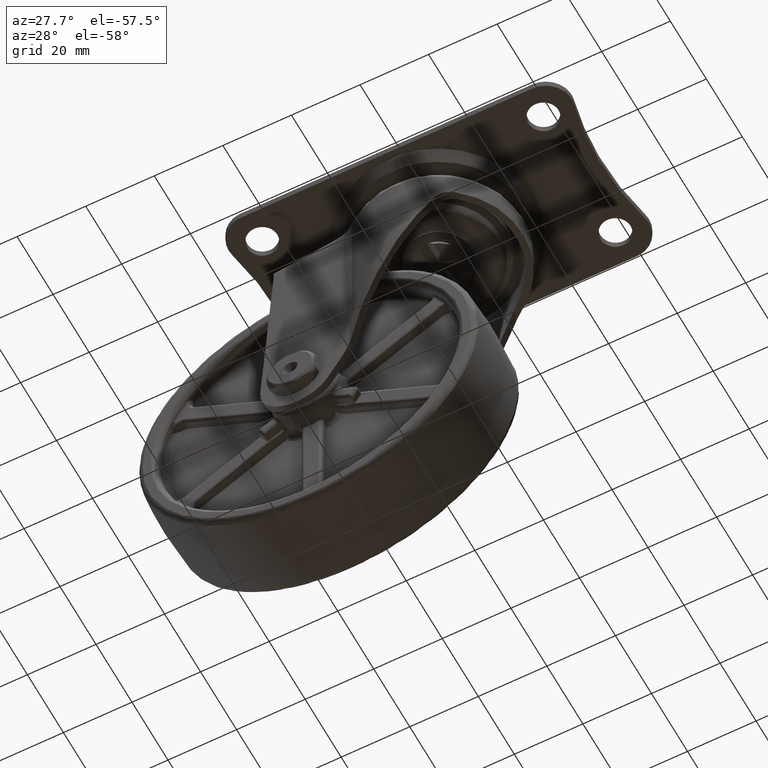
[diagram: clean part render]
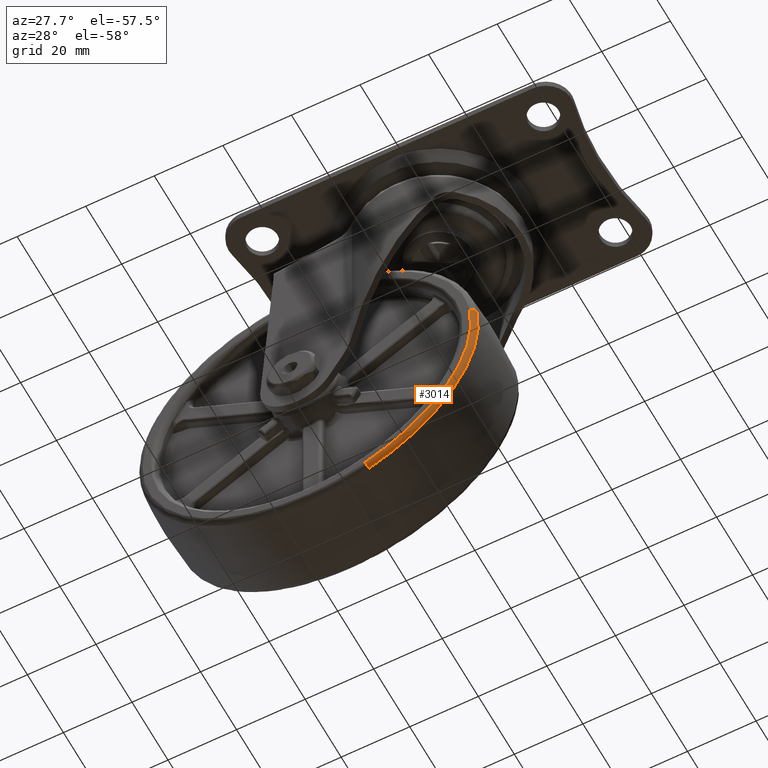
[diagram: same view with one face highlighted and labeled with its STEP entity id]
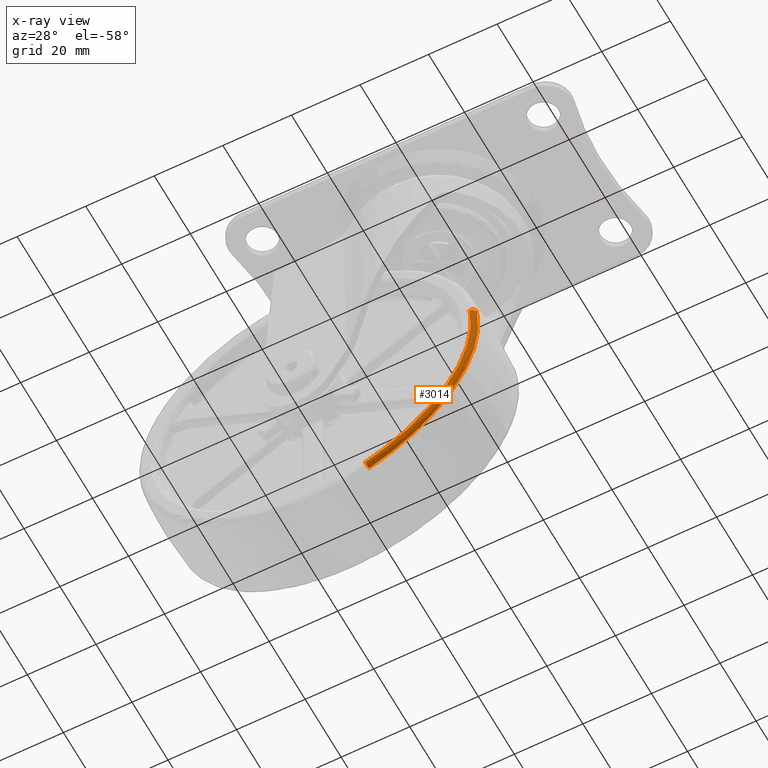
[diagram: x-ray of the same camera — body ghosted, the highlighted face saturated]
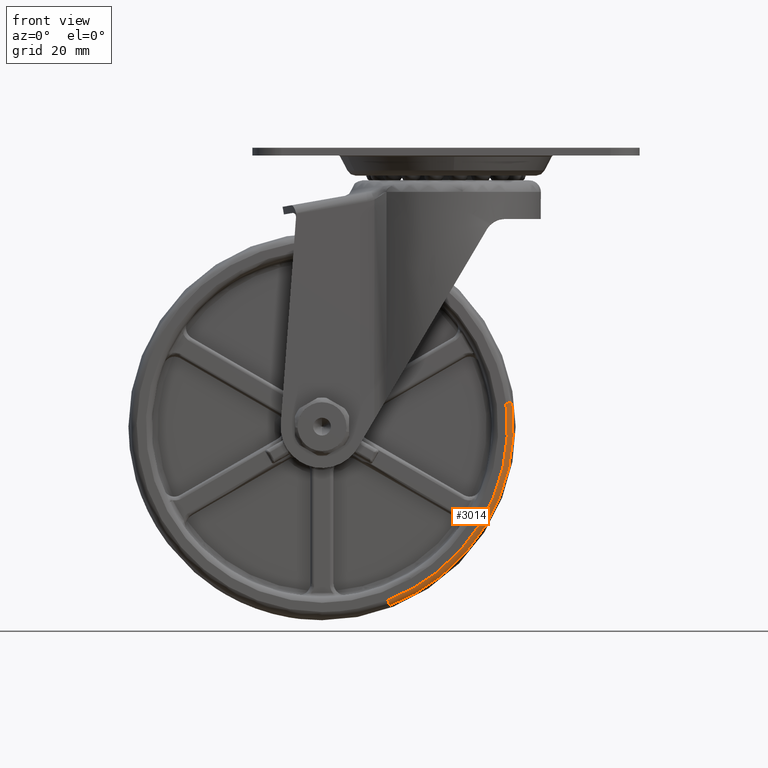
[diagram: same view with one face highlighted and labeled with its STEP entity id]
A machine part, auxiliary view. The second image highlights one B-rep face of the part: STEP entity #3014.
The next image is the same camera in x-ray: the body ghosted, the highlighted face saturated — about 0% of this face is hidden behind the body in this view.
A second angle (front view) of the same face is appended — the face is thin or edge-on in the first view.
In plain terms, the highlighted face is a freeform B-spline surface patch.
Its self-contained STEP definition (entity closure, byte-faithful):
#2821=CARTESIAN_POINT('',(-14.516222482524450,-11.167489464854841,-116.175282812570200));
#2822=VERTEX_POINT('',#2821);
#2838=CARTESIAN_POINT('',(-15.044059814017331,-12.499999999999490,-114.781245509407900));
#2839=VERTEX_POINT('',#2838);
#2840=CARTESIAN_POINT('',(-15.044059814017334,-12.499999999999494,-114.781245509407880));
#2841=CARTESIAN_POINT('',(-14.569240600091069,-12.500001566393173,-116.035260064672330));
#2842=CARTESIAN_POINT('',(-14.516222482524444,-11.167489464854837,-116.175282812570190));
#2850=(BOUNDED_CURVE()B_SPLINE_CURVE(2,(#2840,#2841,#2842),.UNSPECIFIED.,.F.,.U.)B_SPLINE_CURVE_WITH_KNOTS((3,3),(-1.709106975926861,-0.289611698663743),.UNSPECIFIED.)CURVE()GEOMETRIC_REPRESENTATION_ITEM()RATIONAL_B_SPLINE_CURVE((0.818471455342668,0.610343028349098,0.818847534341997))REPRESENTATION_ITEM(''));
#2851=EDGE_CURVE('',#2839,#2822,#2850,.T.);
#2885=CARTESIAN_POINT('',(15.506279477458209,-12.499999999999490,-63.998561241325632));
#2886=VERTEX_POINT('',#2885);
#2900=CARTESIAN_POINT('',(16.985144911769869,-11.167502262737820,-63.811737090141683));
#2901=VERTEX_POINT('',#2900);
#2902=CARTESIAN_POINT('',(15.506279477458214,-12.499999999999485,-63.998561241325632));
#2903=CARTESIAN_POINT('',(16.836591932338738,-12.500001566379554,-63.830503695761465));
#2904=CARTESIAN_POINT('',(16.985144911769869,-11.167502262737822,-63.811737090141676));
#2912=(BOUNDED_CURVE()B_SPLINE_CURVE(2,(#2902,#2903,#2904),.UNSPECIFIED.,.F.,.U.)B_SPLINE_CURVE_WITH_KNOTS((3,3),(-1.709106975926846,-0.289620890062777),.UNSPECIFIED.)CURVE()GEOMETRIC_REPRESENTATION_ITEM()RATIONAL_B_SPLINE_CURVE((0.888416193239108,0.662503039728360,0.888821480192599))REPRESENTATION_ITEM(''));
#2913=EDGE_CURVE('',#2886,#2901,#2912,.T.);
#2963=CARTESIAN_POINT('',(15.408520659971762,-12.496759950846352,-64.010911051976322));
#2964=CARTESIAN_POINT('',(20.126663681899728,-12.496759950846345,-101.358858773738760));
#2965=CARTESIAN_POINT('',(-15.078946000863739,-12.496759950846346,-114.689092060061200));
#2966=CARTESIAN_POINT('',(16.922798430995478,-12.597243111075532,-63.819613282368138));
#2967=CARTESIAN_POINT('',(21.791643879389337,-12.597243111075532,-102.360493545393580));
#2968=CARTESIAN_POINT('',(-14.538469825347505,-12.597243111075532,-116.116508435255530));
#2969=CARTESIAN_POINT('',(16.992866177041503,-11.069257172055607,-63.810761667561017));
#2970=CARTESIAN_POINT('',(21.868684837053610,-11.069257172055604,-102.406840584328050));
#2971=CARTESIAN_POINT('',(-14.513461238326917,-11.069257172055604,-116.182556983278190));
#2979=(BOUNDED_SURFACE()B_SPLINE_SURFACE(2,2,((#2963,#2966,#2969),(#2964,#2967,#2970),(#2965,#2968,#2971)),.UNSPECIFIED.,.F.,.F.,.U.)B_SPLINE_SURFACE_WITH_KNOTS((3,3),(3,3),(0.0,68.427574795089612),(0.0,2.519709744383202),.UNSPECIFIED.)GEOMETRIC_REPRESENTATION_ITEM()RATIONAL_B_SPLINE_SURFACE(((0.912114174401836,0.638783487121513,0.912562608583579),(0.687706469900301,0.481623407778999,0.688044575695347),(0.840303670439210,0.588492234753593,0.840716799518271)))REPRESENTATION_ITEM('')SURFACE());
#2980=CARTESIAN_POINT('',(16.985144911769869,-11.167502262737825,-63.811737090141683));
#2981=CARTESIAN_POINT('',(17.374476905847196,-11.167501439187902,-66.893621891218842));
#2982=CARTESIAN_POINT('',(17.374476905847200,-11.167500683799281,-70.000001349267805));
#2983=CARTESIAN_POINT('',(17.374476905847192,-11.167492391538365,-104.100209095487200));
#2984=CARTESIAN_POINT('',(-14.516222482524453,-11.167489464854839,-116.175282812570220));
#2992=(BOUNDED_CURVE()B_SPLINE_CURVE(2,(#2980,#2981,#2982,#2983,#2984),.UNSPECIFIED.,.F.,.U.)B_SPLINE_CURVE_WITH_KNOTS((3,2,3),(0.228321252483565,0.250000000000000,0.439864363426972),.UNSPECIFIED.)CURVE()GEOMETRIC_REPRESENTATION_ITEM()RATIONAL_B_SPLINE_CURVE((0.953608349848746,0.974601767440268,1.0,0.777560061831628,0.892987461751840))REPRESENTATION_ITEM(''));
#2993=EDGE_CURVE('',#2901,#2822,#2992,.T.);
#2994=ORIENTED_EDGE('',*,*,#2993,.F.);
#2995=ORIENTED_EDGE('',*,*,#2913,.F.);
#2996=CARTESIAN_POINT('',(15.506279477458213,-12.499999999999487,-63.998561241325632));
#2997=CARTESIAN_POINT('',(15.883858000000100,-12.500000000000002,-66.987403007108995));
#2998=CARTESIAN_POINT('',(15.883858000000100,-12.500000000000000,-70.0));
#2999=CARTESIAN_POINT('',(15.883858000000101,-12.500000000000000,-103.070719851485950));
#3000=CARTESIAN_POINT('',(-15.044059814017329,-12.499999999999492,-114.781245509407900));
#3008=(BOUNDED_CURVE()B_SPLINE_CURVE(2,(#2996,#2997,#2998,#2999,#3000),.UNSPECIFIED.,.F.,.U.)B_SPLINE_CURVE_WITH_KNOTS((3,2,3),(0.228321256481546,0.250000000000000,0.439864366383273),.UNSPECIFIED.)CURVE()GEOMETRIC_REPRESENTATION_ITEM()RATIONAL_B_SPLINE_CURVE((0.953608357591933,0.974601772124195,1.0,0.777560058368106,0.892987465346387))REPRESENTATION_ITEM(''));
#3009=EDGE_CURVE('',#2886,#2839,#3008,.T.);
#3010=ORIENTED_EDGE('',*,*,#3009,.T.);
#3011=ORIENTED_EDGE('',*,*,#2851,.T.);
#3012=EDGE_LOOP('',(#2994,#2995,#3010,#3011));
#3013=FACE_OUTER_BOUND('',#3012,.T.);
#3014=ADVANCED_FACE('',(#3013),#2979,.T.);